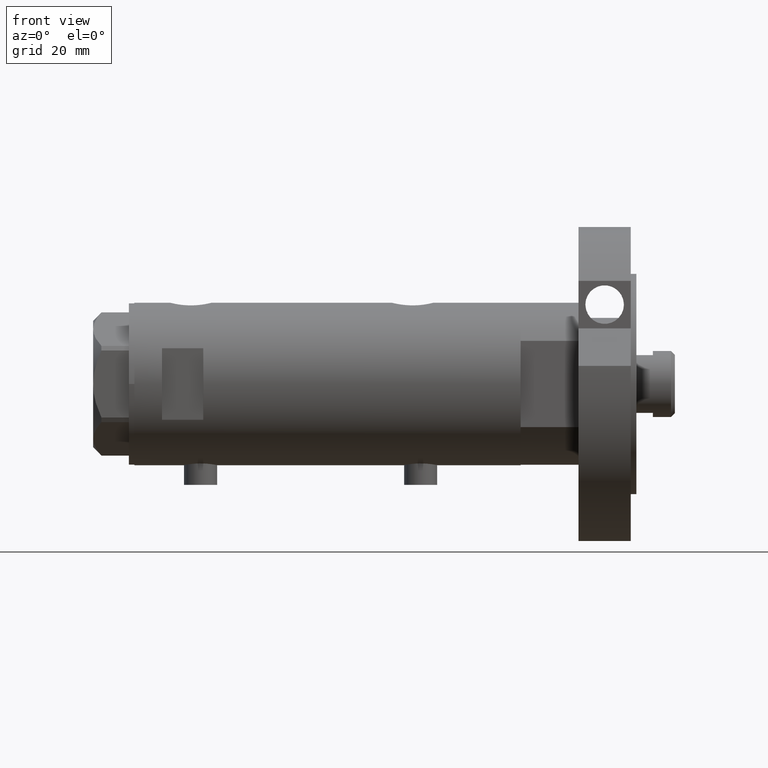
[diagram: clean part render]
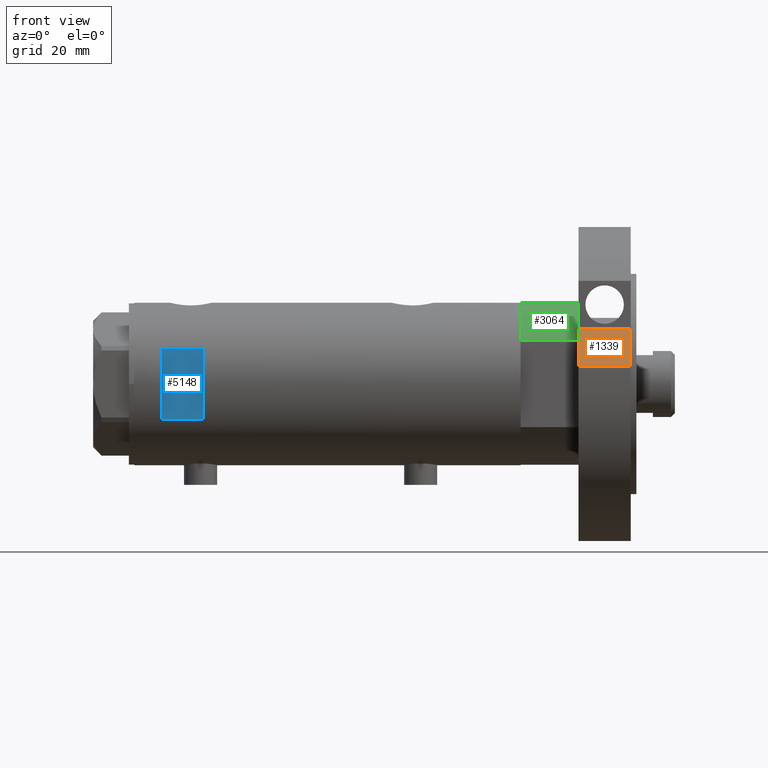
[diagram: same view with three faces highlighted in distinct colors, each labeled with its STEP entity id]
A machine part, front view with three faces highlighted in distinct colors.
Their STEP definitions:

[orange] entity #1339 — the highlighted planar face has unit normal (-0, 0.7071, -0.7071).
#146 = VERTEX_POINT ( 'NONE', #4113 ) ;
#161 = EDGE_CURVE ( 'NONE', #1183, #146, #4053, .T. ) ;
#210 = CARTESIAN_POINT ( 'NONE',  ( 20.20945616129993283, 42.98007820311755012, 0.000000000000000000 ) ) ;
#320 = DIRECTION ( 'NONE',  ( -0.000000000000000000, -0.000000000000000000, 1.000000000000000000 ) ) ;
#393 = LINE ( 'NONE', #6117, #4806 ) ;
#406 = DIRECTION ( 'NONE',  ( -0.000000000000000000, -0.000000000000000000, 1.000000000000000000 ) ) ;
#514 = VERTEX_POINT ( 'NONE', #2538 ) ;
#844 = VECTOR ( 'NONE', #2125, 999.9999999999998863 ) ;
#876 = VECTOR ( 'NONE', #320, 1000.000000000000000 ) ;
#927 = EDGE_CURVE ( 'NONE', #514, #1183, #4432, .T. ) ;
#964 = ORIENTED_EDGE ( 'NONE', *, *, #161, .F. ) ;
#1146 = EDGE_LOOP ( 'NONE', ( #6091, #964, #3434, #2946 ) ) ;
#1183 = VERTEX_POINT ( 'NONE', #3412 ) ;
#1249 = FACE_OUTER_BOUND ( 'NONE', #1146, .T. ) ;
#1339 = ADVANCED_FACE ( 'NONE', ( #1249 ), #4448, .F. ) ;
#1373 = CARTESIAN_POINT ( 'NONE',  ( 6.569366352211361004, 56.62016801220598694, 19.00000000000000000 ) ) ;
#1481 = VERTEX_POINT ( 'NONE', #1373 ) ;
#1710 = CARTESIAN_POINT ( 'NONE',  ( 6.569366352211361004, 56.62016801220598694, 0.000000000000000000 ) ) ;
#2125 = DIRECTION ( 'NONE',  ( 0.7071067811865510144, -0.7071067811865441310, -0.000000000000000000 ) ) ;
#2270 = CARTESIAN_POINT ( 'NONE',  ( 20.20945616129993283, 42.98007820311755012, 0.000000000000000000 ) ) ;
#2538 = CARTESIAN_POINT ( 'NONE',  ( 6.569366352211361004, 56.62016801220598694, 0.000000000000000000 ) ) ;
#2672 = LINE ( 'NONE', #1710, #876 ) ;
#2946 = ORIENTED_EDGE ( 'NONE', *, *, #4890, .T. ) ;
#3086 = VECTOR ( 'NONE', #406, 1000.000000000000000 ) ;
#3412 = CARTESIAN_POINT ( 'NONE',  ( 20.20945616129993283, 42.98007820311755012, 0.000000000000000000 ) ) ;
#3434 = ORIENTED_EDGE ( 'NONE', *, *, #927, .F. ) ;
#3563 = DIRECTION ( 'NONE',  ( 0.7071067811865510144, -0.7071067811865441310, 0.000000000000000000 ) ) ;
#3568 = EDGE_CURVE ( 'NONE', #1481, #146, #393, .T. ) ;
#3658 = DIRECTION ( 'NONE',  ( -0.7071067811865441310, -0.7071067811865510144, 0.000000000000000000 ) ) ;
#3696 = AXIS2_PLACEMENT_3D ( 'NONE', #5945, #3658, #3563 ) ;
#3756 = DIRECTION ( 'NONE',  ( 0.7071067811865510144, -0.7071067811865441310, 0.000000000000000000 ) ) ;
#4053 = LINE ( 'NONE', #2270, #3086 ) ;
#4113 = CARTESIAN_POINT ( 'NONE',  ( 20.20945616129993283, 42.98007820311755012, 19.00000000000000000 ) ) ;
#4432 = LINE ( 'NONE', #210, #844 ) ;
#4448 = PLANE ( 'NONE',  #3696 ) ;
#4806 = VECTOR ( 'NONE', #3756, 999.9999999999998863 ) ;
#4890 = EDGE_CURVE ( 'NONE', #514, #1481, #2672, .T. ) ;
#5945 = CARTESIAN_POINT ( 'NONE',  ( 20.20945616129993283, 42.98007820311755012, 0.000000000000000000 ) ) ;
#6091 = ORIENTED_EDGE ( 'NONE', *, *, #3568, .T. ) ;
#6117 = CARTESIAN_POINT ( 'NONE',  ( 31.59476718220863845, 31.59476718220895108, 19.00000000000000000 ) ) ;

[blue] entity #5148 — the highlighted planar face has unit normal (-0, 1, 0).
#446 = DIRECTION ( 'NONE',  ( 0.000000000000000000, -0.000000000000000000, 1.000000000000000000 ) ) ;
#479 = FACE_OUTER_BOUND ( 'NONE', #2385, .T. ) ;
#765 = VERTEX_POINT ( 'NONE', #3272 ) ;
#846 = VECTOR ( 'NONE', #5105, 1000.000000000000000 ) ;
#855 = EDGE_CURVE ( 'NONE', #5502, #3411, #3453, .T. ) ;
#941 = VECTOR ( 'NONE', #3118, 1000.000000000000000 ) ;
#1079 = CARTESIAN_POINT ( 'NONE',  ( -29.50000000000000355, -26.50000000000000355, 60.09999999999998721 ) ) ;
#1236 = CARTESIAN_POINT ( 'NONE',  ( -12.96148139681573319, -26.49999999999999645, -70.09999999999999432 ) ) ;
#1280 = CARTESIAN_POINT ( 'NONE',  ( -12.96148139681573319, -26.49999999999998934, 45.09999999999998721 ) ) ;
#1429 = LINE ( 'NONE', #4642, #846 ) ;
#1439 = ORIENTED_EDGE ( 'NONE', *, *, #855, .F. ) ;
#1443 = EDGE_CURVE ( 'NONE', #765, #3411, #1429, .T. ) ;
#1789 = ORIENTED_EDGE ( 'NONE', *, *, #1909, .T. ) ;
#1909 = EDGE_CURVE ( 'NONE', #5502, #5493, #5471, .T. ) ;
#1921 = ORIENTED_EDGE ( 'NONE', *, *, #3266, .T. ) ;
#1946 = CARTESIAN_POINT ( 'NONE',  ( -29.50000000000000355, -26.50000000000000355, 45.09999999999998721 ) ) ;
#2280 = DIRECTION ( 'NONE',  ( 0.000000000000000000, 1.000000000000000000, 0.000000000000000000 ) ) ;
#2322 = VECTOR ( 'NONE', #2983, 1000.000000000000000 ) ;
#2385 = EDGE_LOOP ( 'NONE', ( #1789, #1921, #3792, #1439 ) ) ;
#2983 = DIRECTION ( 'NONE',  ( 1.000000000000000000, -0.000000000000000000, -0.000000000000000000 ) ) ;
#3118 = DIRECTION ( 'NONE',  ( -0.000000000000000000, -0.000000000000000000, -1.000000000000000000 ) ) ;
#3266 = EDGE_CURVE ( 'NONE', #5493, #765, #4282, .T. ) ;
#3272 = CARTESIAN_POINT ( 'NONE',  ( 12.96148139681573319, -26.49999999999998934, 45.09999999999998721 ) ) ;
#3411 = VERTEX_POINT ( 'NONE', #4007 ) ;
#3453 = LINE ( 'NONE', #1079, #2322 ) ;
#3681 = CARTESIAN_POINT ( 'NONE',  ( -12.96148139681573319, -26.49999999999998934, 60.09999999999998721 ) ) ;
#3792 = ORIENTED_EDGE ( 'NONE', *, *, #1443, .T. ) ;
#4007 = CARTESIAN_POINT ( 'NONE',  ( 12.96148139681573319, -26.49999999999998934, 60.09999999999998721 ) ) ;
#4282 = LINE ( 'NONE', #1946, #5001 ) ;
#4369 = DIRECTION ( 'NONE',  ( 1.000000000000000000, -0.000000000000000000, -0.000000000000000000 ) ) ;
#4576 = PLANE ( 'NONE',  #4919 ) ;
#4642 = CARTESIAN_POINT ( 'NONE',  ( 12.96148139681573319, -26.49999999999999645, -70.09999999999999432 ) ) ;
#4919 = AXIS2_PLACEMENT_3D ( 'NONE', #5136, #2280, #446 ) ;
#5001 = VECTOR ( 'NONE', #4369, 1000.000000000000000 ) ;
#5105 = DIRECTION ( 'NONE',  ( 0.000000000000000000, 0.000000000000000000, 1.000000000000000000 ) ) ;
#5136 = CARTESIAN_POINT ( 'NONE',  ( -29.50000000000000355, -26.50000000000000355, 60.09999999999998721 ) ) ;
#5148 = ADVANCED_FACE ( 'NONE', ( #479 ), #4576, .F. ) ;
#5471 = LINE ( 'NONE', #1236, #941 ) ;
#5493 = VERTEX_POINT ( 'NONE', #1280 ) ;
#5502 = VERTEX_POINT ( 'NONE', #3681 ) ;

[green] entity #3064 — the highlighted cylindrical surface (partial cylindrical patch) has radius 29.5 mm, axis along (-1, -0, 0).
#70 = CIRCLE ( 'NONE', #3824, 29.50000000000000355 ) ;
#105 = CARTESIAN_POINT ( 'NONE',  ( -15.66045976336583045, -24.99999999999999645, 20.99999999999999645 ) ) ;
#340 = CARTESIAN_POINT ( 'NONE',  ( 0.000000000000000000, 0.000000000000000000, 21.00000000000000000 ) ) ;
#358 = AXIS2_PLACEMENT_3D ( 'NONE', #340, #3060, #1185 ) ;
#650 = LINE ( 'NONE', #4376, #2358 ) ;
#657 = CIRCLE ( 'NONE', #5888, 29.50000000000000355 ) ;
#678 = CARTESIAN_POINT ( 'NONE',  ( -29.50000000000000355, 0.000000000000000000, 0.000000000000000000 ) ) ;
#1110 = CARTESIAN_POINT ( 'NONE',  ( -15.66045976336582690, -25.00000000000000000, 0.000000000000000000 ) ) ;
#1185 = DIRECTION ( 'NONE',  ( -1.000000000000000000, 0.000000000000000000, 0.000000000000000000 ) ) ;
#1231 = ORIENTED_EDGE ( 'NONE', *, *, #4528, .T. ) ;
#1360 = LINE ( 'NONE', #2266, #1654 ) ;
#1467 = CARTESIAN_POINT ( 'NONE',  ( 0.000000000000000000, 0.000000000000000000, 21.00000000000000000 ) ) ;
#1614 = CARTESIAN_POINT ( 'NONE',  ( 0.000000000000000000, 0.000000000000000000, 0.000000000000000000 ) ) ;
#1654 = VECTOR ( 'NONE', #1821, 1000.000000000000000 ) ;
#1821 = DIRECTION ( 'NONE',  ( -0.000000000000000000, -0.000000000000000000, 1.000000000000000000 ) ) ;
#2266 = CARTESIAN_POINT ( 'NONE',  ( -15.66045976336583401, -25.00000000000000000, 0.000000000000000000 ) ) ;
#2358 = VECTOR ( 'NONE', #4917, 1000.000000000000000 ) ;
#2601 = DIRECTION ( 'NONE',  ( 1.000000000000000000, 0.000000000000000000, 0.000000000000000000 ) ) ;
#2765 = EDGE_CURVE ( 'NONE', #5578, #2918, #657, .T. ) ;
#2918 = VERTEX_POINT ( 'NONE', #105 ) ;
#3060 = DIRECTION ( 'NONE',  ( -0.000000000000000000, -0.000000000000000000, -1.000000000000000000 ) ) ;
#3064 = ADVANCED_FACE ( 'NONE', ( #4978 ), #3525, .T. ) ;
#3225 = VERTEX_POINT ( 'NONE', #1110 ) ;
#3347 = DIRECTION ( 'NONE',  ( 0.000000000000000000, 0.000000000000000000, 1.000000000000000000 ) ) ;
#3525 = CYLINDRICAL_SURFACE ( 'NONE', #358, 29.50000000000000355 ) ;
#3560 = DIRECTION ( 'NONE',  ( 0.000000000000000000, 0.000000000000000000, 1.000000000000000000 ) ) ;
#3824 = AXIS2_PLACEMENT_3D ( 'NONE', #1614, #3560, #2601 ) ;
#3864 = ORIENTED_EDGE ( 'NONE', *, *, #4120, .T. ) ;
#4120 = EDGE_CURVE ( 'NONE', #6102, #3225, #70, .T. ) ;
#4135 = ORIENTED_EDGE ( 'NONE', *, *, #4698, .T. ) ;
#4376 = CARTESIAN_POINT ( 'NONE',  ( -29.50000000000000355, 0.000000000000000000, 21.00000000000000000 ) ) ;
#4528 = EDGE_CURVE ( 'NONE', #5578, #6102, #650, .T. ) ;
#4654 = EDGE_LOOP ( 'NONE', ( #5143, #1231, #3864, #4135 ) ) ;
#4698 = EDGE_CURVE ( 'NONE', #3225, #2918, #1360, .T. ) ;
#4917 = DIRECTION ( 'NONE',  ( -0.000000000000000000, -0.000000000000000000, -1.000000000000000000 ) ) ;
#4978 = FACE_OUTER_BOUND ( 'NONE', #4654, .T. ) ;
#5134 = DIRECTION ( 'NONE',  ( 1.000000000000000000, 0.000000000000000000, 0.000000000000000000 ) ) ;
#5143 = ORIENTED_EDGE ( 'NONE', *, *, #2765, .F. ) ;
#5411 = CARTESIAN_POINT ( 'NONE',  ( -29.50000000000000355, 0.000000000000000000, 21.00000000000000000 ) ) ;
#5578 = VERTEX_POINT ( 'NONE', #5411 ) ;
#5888 = AXIS2_PLACEMENT_3D ( 'NONE', #1467, #3347, #5134 ) ;
#6102 = VERTEX_POINT ( 'NONE', #678 ) ;